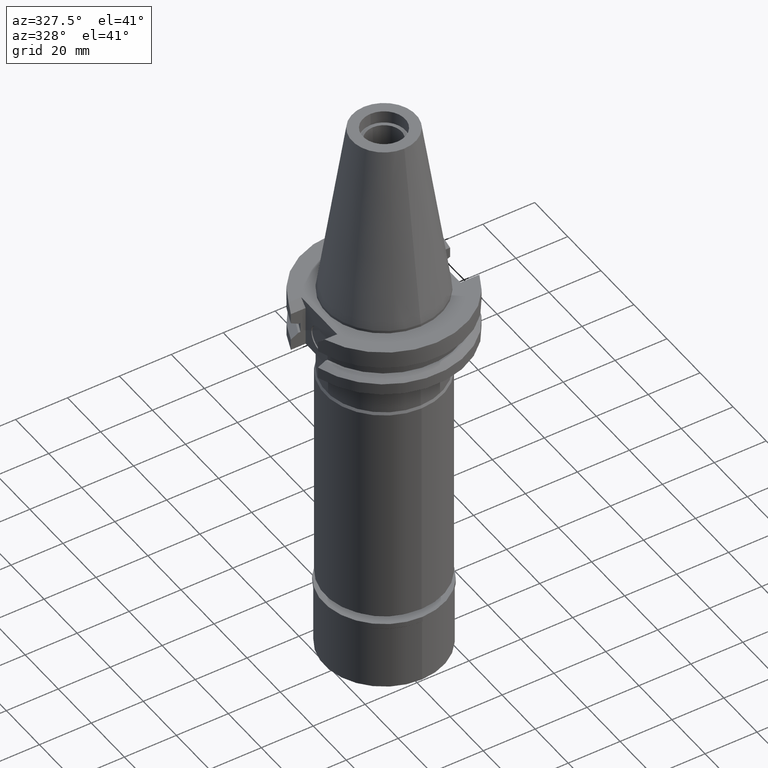
[diagram: clean part render]
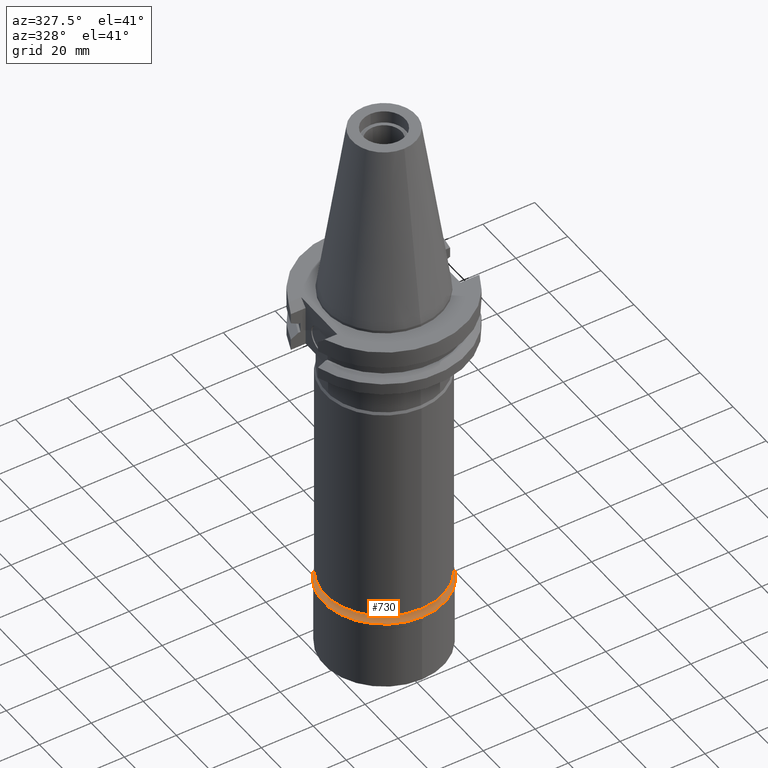
[diagram: same view with one face highlighted and labeled with its STEP entity id]
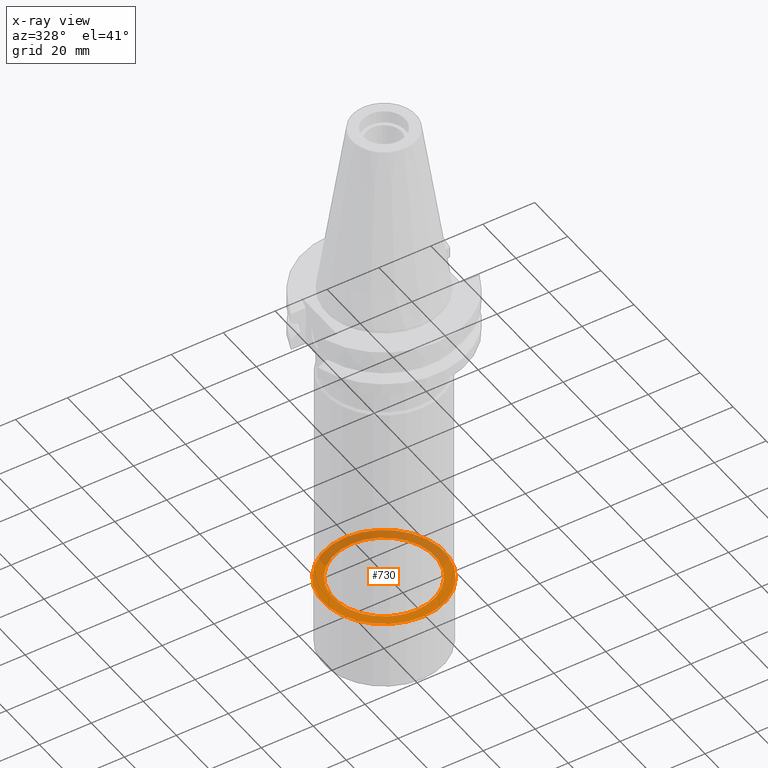
[diagram: x-ray of the same camera — body ghosted, the highlighted face saturated]
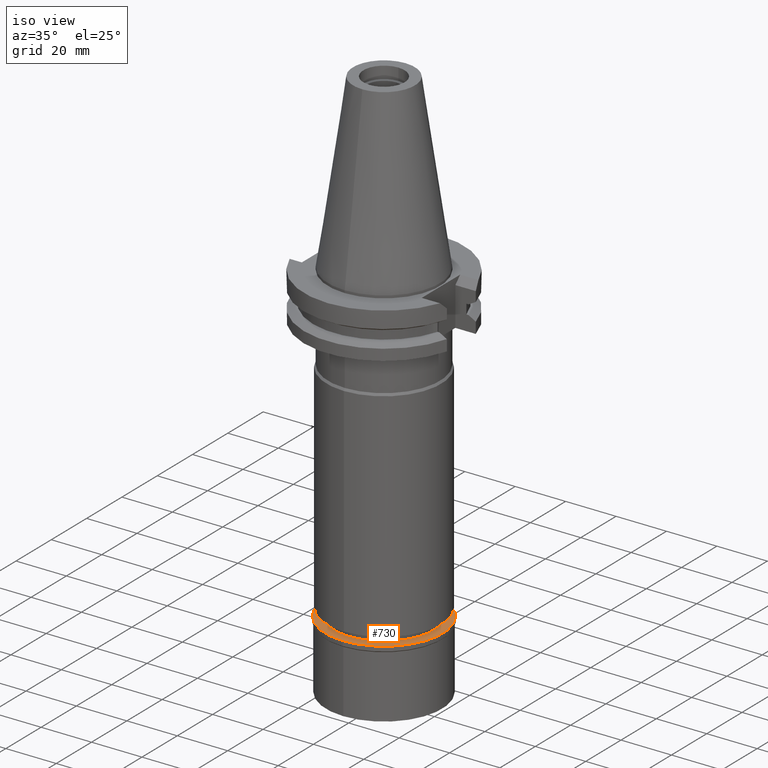
[diagram: same view with one face highlighted and labeled with its STEP entity id]
A machine part, auxiliary view. The second image highlights one B-rep face of the part: STEP entity #730.
The next image is the same camera in x-ray: the body ghosted, the highlighted face saturated — about 39% of this face is hidden behind the body in this view.
A second angle (iso view) of the same face is appended — the face is thin or edge-on in the first view.
In plain terms, the highlighted planar face has unit normal (0, 0, -1).
Its self-contained STEP definition (entity closure, byte-faithful):
#30 = ORIENTED_EDGE ( 'NONE', *, *, #776, .F. ) ;
#50 = ORIENTED_EDGE ( 'NONE', *, *, #587, .F. ) ;
#375 = DIRECTION ( 'NONE',  ( 0.0000000000000000000, 1.000000000000000000, 0.0000000000000000000 ) ) ;
#399 = FACE_BOUND ( 'NONE', #1045, .T. ) ;
#421 = PLANE ( 'NONE',  #1866 ) ;
#577 = CIRCLE ( 'NONE', #892, 23.34999999999999787 ) ;
#587 = EDGE_CURVE ( 'NONE', #1494, #1124, #1427, .T. ) ;
#680 = DIRECTION ( 'NONE',  ( 0.0000000000000000000, -1.000000000000000000, 0.0000000000000000000 ) ) ;
#730 = ADVANCED_FACE ( 'NONE', ( #1958, #399 ), #421, .F. ) ;
#739 = CARTESIAN_POINT ( 'NONE',  ( 0.0000000000000000000, -23.34999999999999787, 0.0000000000000000000 ) ) ;
#776 = EDGE_CURVE ( 'NONE', #1124, #1494, #1018, .T. ) ;
#828 = VERTEX_POINT ( 'NONE', #739 ) ;
#872 = DIRECTION ( 'NONE',  ( 0.0000000000000000000, -1.000000000000000000, 0.0000000000000000000 ) ) ;
#892 = AXIS2_PLACEMENT_3D ( 'NONE', #2324, #1834, #2544 ) ;
#906 = DIRECTION ( 'NONE',  ( 0.0000000000000000000, 0.0000000000000000000, -1.000000000000000000 ) ) ;
#1018 = CIRCLE ( 'NONE', #2834, 19.50000000000000000 ) ;
#1045 = EDGE_LOOP ( 'NONE', ( #30, #50 ) ) ;
#1124 = VERTEX_POINT ( 'NONE', #1600 ) ;
#1418 = AXIS2_PLACEMENT_3D ( 'NONE', #1574, #2594, #375 ) ;
#1427 = CIRCLE ( 'NONE', #1836, 19.50000000000000000 ) ;
#1479 = CIRCLE ( 'NONE', #1418, 23.34999999999999787 ) ;
#1494 = VERTEX_POINT ( 'NONE', #2226 ) ;
#1567 = VERTEX_POINT ( 'NONE', #1595 ) ;
#1574 = CARTESIAN_POINT ( 'NONE',  ( 0.0000000000000000000, 0.0000000000000000000, 0.0000000000000000000 ) ) ;
#1595 = CARTESIAN_POINT ( 'NONE',  ( 0.0000000000000000000, 23.34999999999999787, 0.0000000000000000000 ) ) ;
#1600 = CARTESIAN_POINT ( 'NONE',  ( 0.0000000000000000000, 19.50000000000000000, 0.0000000000000000000 ) ) ;
#1685 = CARTESIAN_POINT ( 'NONE',  ( 0.0000000000000000000, 0.0000000000000000000, 0.0000000000000000000 ) ) ;
#1834 = DIRECTION ( 'NONE',  ( 0.0000000000000000000, 0.0000000000000000000, -1.000000000000000000 ) ) ;
#1836 = AXIS2_PLACEMENT_3D ( 'NONE', #2853, #2070, #872 ) ;
#1866 = AXIS2_PLACEMENT_3D ( 'NONE', #1685, #906, #680 ) ;
#1954 = EDGE_LOOP ( 'NONE', ( #3143, #2634 ) ) ;
#1958 = FACE_OUTER_BOUND ( 'NONE', #1954, .T. ) ;
#2070 = DIRECTION ( 'NONE',  ( 0.0000000000000000000, 0.0000000000000000000, 1.000000000000000000 ) ) ;
#2140 = CARTESIAN_POINT ( 'NONE',  ( 0.0000000000000000000, 0.0000000000000000000, 0.0000000000000000000 ) ) ;
#2226 = CARTESIAN_POINT ( 'NONE',  ( 0.0000000000000000000, -19.50000000000000000, 0.0000000000000000000 ) ) ;
#2324 = CARTESIAN_POINT ( 'NONE',  ( 0.0000000000000000000, 0.0000000000000000000, 0.0000000000000000000 ) ) ;
#2405 = DIRECTION ( 'NONE',  ( 0.0000000000000000000, 1.000000000000000000, 0.0000000000000000000 ) ) ;
#2544 = DIRECTION ( 'NONE',  ( 0.0000000000000000000, -1.000000000000000000, 0.0000000000000000000 ) ) ;
#2545 = EDGE_CURVE ( 'NONE', #1567, #828, #1479, .T. ) ;
#2594 = DIRECTION ( 'NONE',  ( 0.0000000000000000000, 0.0000000000000000000, -1.000000000000000000 ) ) ;
#2634 = ORIENTED_EDGE ( 'NONE', *, *, #3052, .F. ) ;
#2673 = DIRECTION ( 'NONE',  ( 0.0000000000000000000, 0.0000000000000000000, 1.000000000000000000 ) ) ;
#2834 = AXIS2_PLACEMENT_3D ( 'NONE', #2140, #2673, #2405 ) ;
#2853 = CARTESIAN_POINT ( 'NONE',  ( 0.0000000000000000000, 0.0000000000000000000, 0.0000000000000000000 ) ) ;
#3052 = EDGE_CURVE ( 'NONE', #828, #1567, #577, .T. ) ;
#3143 = ORIENTED_EDGE ( 'NONE', *, *, #2545, .F. ) ;